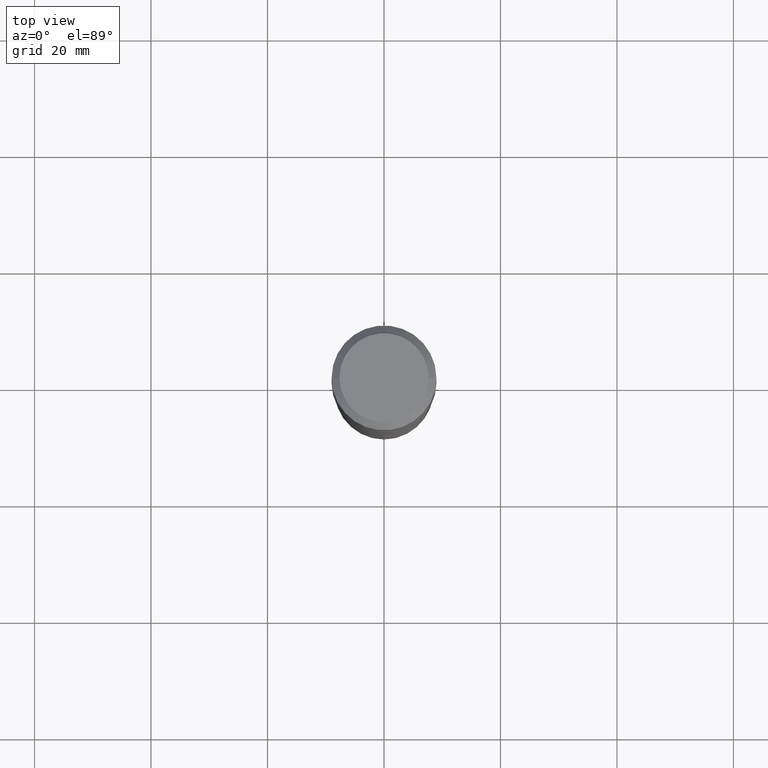
[diagram: clean part render]
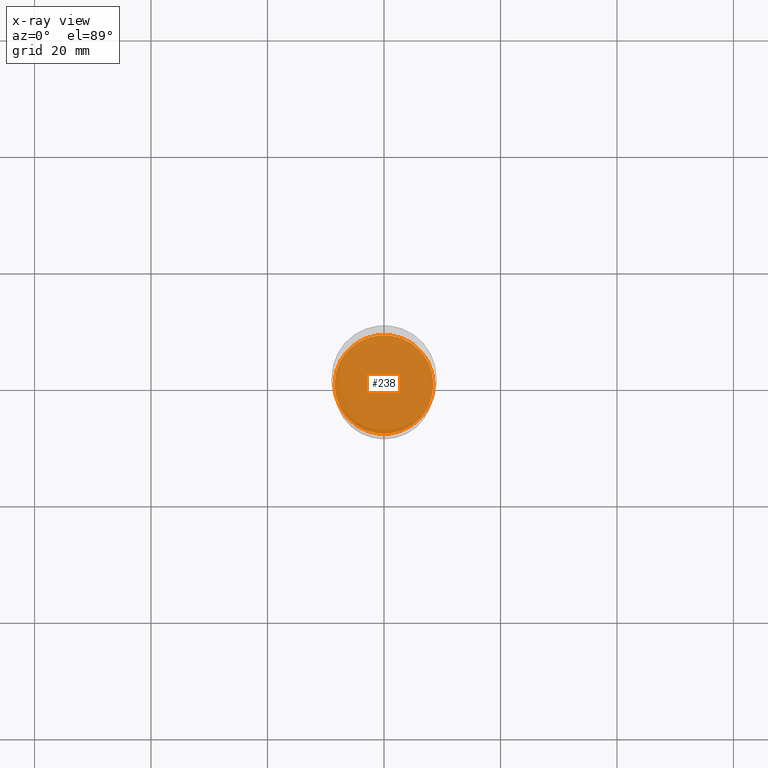
[diagram: x-ray — body ghosted, one internal face saturated and labeled with its STEP entity id]
A machine part, top view, then the same camera in x-ray: the body is ghosted and one INTERNAL B-rep face — a face not visible from any outside direction — is saturated and labeled: STEP entity #238.
In plain terms, the highlighted planar face has unit normal (-0, 0, 1).
Its self-contained STEP definition (entity closure, byte-faithful):
#17 = DIRECTION ( 'NONE',  ( -2.445468806185136597E-29, 3.491481338843145583E-15, 1.000000000000000000 ) ) ;
#62 = DIRECTION ( 'NONE',  ( 1.000000000000000000, -6.982962677686268288E-15, 0.000000000000000000 ) ) ;
#84 = EDGE_LOOP ( 'NONE', ( #227, #378 ) ) ;
#89 = DIRECTION ( 'NONE',  ( -2.445468806185136597E-29, 3.491481338843145583E-15, 1.000000000000000000 ) ) ;
#102 = AXIS2_PLACEMENT_3D ( 'NONE', #144, #89, #138 ) ;
#130 = VERTEX_POINT ( 'NONE', #433 ) ;
#138 = DIRECTION ( 'NONE',  ( 1.000000000000000000, -6.982962677686268288E-15, 0.000000000000000000 ) ) ;
#141 = EDGE_CURVE ( 'NONE', #130, #371, #308, .T. ) ;
#144 = CARTESIAN_POINT ( 'NONE',  ( 6.450657616955153231E-29, -9.209829475600448681E-15, -2.637799999999999923 ) ) ;
#174 = FACE_OUTER_BOUND ( 'NONE', #84, .T. ) ;
#227 = ORIENTED_EDGE ( 'NONE', *, *, #376, .F. ) ;
#238 = ADVANCED_FACE ( 'NONE', ( #174 ), #324, .F. ) ;
#241 = CARTESIAN_POINT ( 'NONE',  ( 6.450657616955153231E-29, -9.209829475600448681E-15, -2.637799999999999923 ) ) ;
#253 = CARTESIAN_POINT ( 'NONE',  ( 0.3341500000000000581, -1.154318645434931476E-14, -2.637799999999999923 ) ) ;
#277 = DIRECTION ( 'NONE',  ( -2.438088387897960049E-29, 3.491481338843145188E-15, 1.000000000000000000 ) ) ;
#290 = AXIS2_PLACEMENT_3D ( 'NONE', #416, #277, #432 ) ;
#308 = CIRCLE ( 'NONE', #102, 0.3341500000000000581 ) ;
#324 = PLANE ( 'NONE',  #290 ) ;
#357 = CIRCLE ( 'NONE', #468, 0.3341500000000000581 ) ;
#371 = VERTEX_POINT ( 'NONE', #253 ) ;
#376 = EDGE_CURVE ( 'NONE', #371, #130, #357, .T. ) ;
#378 = ORIENTED_EDGE ( 'NONE', *, *, #141, .F. ) ;
#416 = CARTESIAN_POINT ( 'NONE',  ( 6.450657616955153231E-29, -9.209829475600448681E-15, -2.637799999999999923 ) ) ;
#432 = DIRECTION ( 'NONE',  ( 1.000000000000000000, -6.982962677686265922E-15, 4.876176775795935793E-29 ) ) ;
#433 = CARTESIAN_POINT ( 'NONE',  ( -0.3341500000000000581, -6.832901696883962296E-15, -2.637799999999999923 ) ) ;
#468 = AXIS2_PLACEMENT_3D ( 'NONE', #241, #17, #62 ) ;